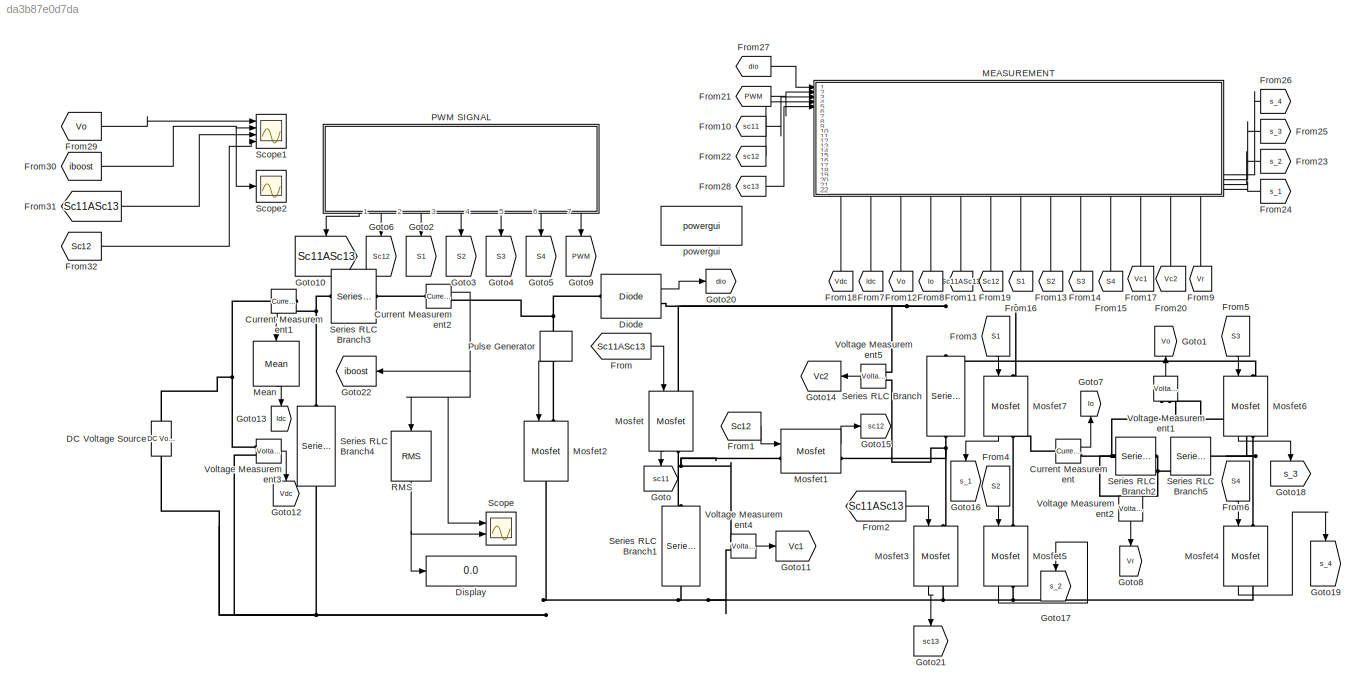
MODEL slx_da3b87e0d7da
KIND model
CONFIG AbsTol = auto
CONFIG EnableMultiTasking = off
CONFIG FixedStep = auto
CONFIG MaxStep = auto
CONFIG MinStep = auto
CONFIG RelTol = 1e-3
CONFIG SampleTimeConstraint = Unconstrained
CONFIG SolverName = VariableStepAuto
CONFIG StartTime = 0.0
CONFIG StopTime = 1.8
BLOCK [Reference] Current Measurement  REF=spsCurrentMeasurementLib/Current Measurement
  Ports = [0, 1, 0, 0, 0, 1, 1]
  SourceBlock = spsCurrentMeasurementLib/Current Measurement
  SourceType = Current Measurement
  UserDataPersistent = on
BLOCK [Reference] Current Measurement1  REF=spsCurrentMeasurementLib/Current Measurement
  Ports = [0, 1, 0, 0, 0, 1, 1]
  SourceBlock = spsCurrentMeasurementLib/Current Measurement
  SourceType = Current Measurement
  UserDataPersistent = on
BLOCK [Reference] Current Measurement2  REF=spsCurrentMeasurementLib/Current Measurement
  Ports = [0, 1, 0, 0, 0, 1, 1]
  SourceBlock = spsCurrentMeasurementLib/Current Measurement
  SourceType = Current Measurement
  UserDataPersistent = on
BLOCK [Reference] DC Voltage Source  REF=spsDCVoltageSourceLib/DC Voltage Source
  Ports = [0, 0, 0, 0, 0, 1, 1]
  SourceBlock = spsDCVoltageSourceLib/DC Voltage Source
  SourceType = DC Voltage Source
BLOCK [Reference] Diode  REF=spsDiodeLib/Diode
  Ports = [0, 1, 0, 0, 0, 1, 1]
  SourceBlock = spsDiodeLib/Diode
  SourceType = Diode
BLOCK [Display] Display
  Decimation = 1
  Ports = [1]
BLOCK [From] From
  GotoTag = Sc11ASc13
BLOCK [From] From1
  GotoTag = Sc12
BLOCK [From] From10
  GotoTag = sc11
BLOCK [From] From11
  GotoTag = Sc11ASc13
  NameLocation = right
BLOCK [From] From12
  GotoTag = Vo
  NameLocation = right
BLOCK [From] From13
  GotoTag = S2
  NameLocation = right
BLOCK [From] From14
  GotoTag = S3
  NameLocation = right
BLOCK [From] From15
  GotoTag = S4
  NameLocation = right
BLOCK [From] From16
  GotoTag = S1
  NameLocation = right
BLOCK [From] From17
  GotoTag = Vc1
  NameLocation = right
BLOCK [From] From18
  GotoTag = Vdc
  NameLocation = right
BLOCK [From] From19
  GotoTag = Sc12
  NameLocation = right
BLOCK [From] From2
  GotoTag = Sc11ASc13
BLOCK [From] From20
  GotoTag = Vc2
  NameLocation = left
BLOCK [From] From21
  GotoTag = PWM
BLOCK [From] From22
  GotoTag = sc12
BLOCK [From] From23
  GotoTag = s_2
  NameLocation = top
BLOCK [From] From24
  GotoTag = s_1
  NameLocation = top
BLOCK [From] From25
  GotoTag = s_3
  NameLocation = top
BLOCK [From] From26
  GotoTag = s_4
  NameLocation = top
BLOCK [From] From27
  GotoTag = dio
BLOCK [From] From28
  GotoTag = sc13
BLOCK [From] From29
  GotoTag = Vo
BLOCK [From] From3
  GotoTag = S1
  NameLocation = left
BLOCK [From] From30
  GotoTag = iboost
BLOCK [From] From31
  GotoTag = Sc11ASc13
BLOCK [From] From32
  GotoTag = Sc12
BLOCK [From] From4
  GotoTag = S2
  NameLocation = left
BLOCK [From] From5
  GotoTag = S3
  NameLocation = left
BLOCK [From] From6
  GotoTag = S4
  NameLocation = left
BLOCK [From] From7
  GotoTag = Idc
  NameLocation = right
BLOCK [From] From8
  GotoTag = Io
  NameLocation = right
BLOCK [From] From9
  GotoTag = Vr
  NameLocation = right
BLOCK [Goto] Goto
  GotoTag = sc11
  NameLocation = left
BLOCK [Goto] Goto1
  GotoTag = Vo
  NameLocation = right
BLOCK [Goto] Goto10
  GotoTag = Sc11ASc13
  NameLocation = left
BLOCK [Goto] Goto11
  GotoTag = Vc1
BLOCK [Goto] Goto12
  GotoTag = Vdc
  NameLocation = left
BLOCK [Goto] Goto13
  GotoTag = Idc
  NameLocation = left
BLOCK [Goto] Goto14
  GotoTag = Vc2
  NameLocation = top
BLOCK [Goto] Goto15
  GotoTag = sc12
BLOCK [Goto] Goto16
  GotoTag = s_1
  NameLocation = left
BLOCK [Goto] Goto17
  GotoTag = s_2
  NameLocation = left
BLOCK [Goto] Goto18
  GotoTag = s_3
  NameLocation = left
BLOCK [Goto] Goto19
  GotoTag = s_4
  NameLocation = left
BLOCK [Goto] Goto2
  GotoTag = S1
  NameLocation = left
BLOCK [Goto] Goto20
  GotoTag = dio
BLOCK [Goto] Goto21
  GotoTag = sc13
  NameLocation = left
BLOCK [Goto] Goto22
  GotoTag = iboost
  NameLocation = top
BLOCK [Goto] Goto3
  GotoTag = S2
  NameLocation = left
BLOCK [Goto] Goto4
  GotoTag = S3
  NameLocation = left
BLOCK [Goto] Goto5
  GotoTag = S4
  NameLocation = left
BLOCK [Goto] Goto6
  GotoTag = Sc12
  NameLocation = left
BLOCK [Goto] Goto7
  GotoTag = Io
  NameLocation = right
BLOCK [Goto] Goto8
  GotoTag = Vr
  NameLocation = left
BLOCK [Goto] Goto9
  GotoTag = PWM
  NameLocation = left
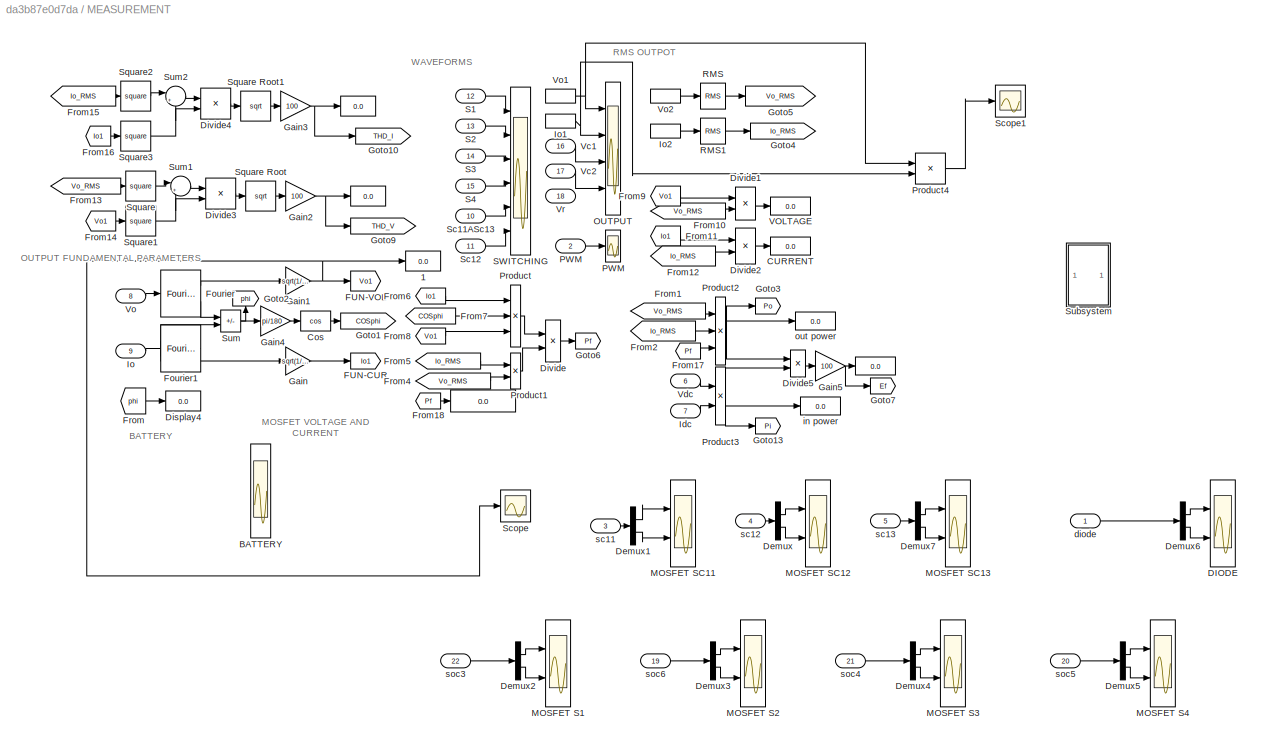
BLOCK [SubSystem] MEASUREMENT
  NameLocation = top
  PortSchema = {"entries":[{"content":{"sides":[{"content":{"connectorIds":["In1","In2","In3","In4","In5"]},"type":"ConnectorPlacement.EquallySpacedRectSide","uuid":"d6dfc44f-8fba-4c4a-86af-0984d0d1ef13"},{"content":{"connectorIds":["In19","In20","In21","In22"],"side":"RIGHT"},"type":"ConnectorPlacement.EquallySpacedRectSide","uuid":"d6149925-38bb-4c16-a1b8-fa53fbdb5b8e"},{"content":{"connectorIds":[],"side":"TO...<+515ch>
  Ports = [22]
BLOCK [Display] MEASUREMENT/ 
  Decimation = 1
  Ports = [1]
BLOCK [Display] MEASUREMENT/  
  Decimation = 1
  Ports = [1]
BLOCK [Display] MEASUREMENT/   
  Decimation = 1
  Ports = [1]
BLOCK [Display] MEASUREMENT/        
  Decimation = 1
  Ports = [1]
BLOCK [Display] MEASUREMENT/   1
  Decimation = 1
  Ports = [1]
BLOCK [Display] MEASUREMENT/  VOLTAGE  
  Decimation = 1
  Ports = [1]
BLOCK [Display] MEASUREMENT/ out power
  Decimation = 1
  Ports = [1]
BLOCK [Scope] MEASUREMENT/BATTERY
  Floating = off
  NumInputPorts = 3
  Ports = [3]
  ScopeSpecificationString = Simulink.scopes.TimeScopeBlockCfg('CurrentConfiguration', extmgr.ConfigurationSet(extmgr.Configuration('Core','General UI',true,'FigureColor',[1 1 1]),extmgr.Configuration('Core','Source UI',true),extmgr.Configuration('Sources','WiredSimulink',true,'DataLoggingVariableName','ScopeData1'),extmgr.Configuration('Visuals','Time Domain',true,'SerializedDisplays',{struct('MinYLimReal','79.97116','MaxYLi...<+2704ch>
BLOCK [Display] MEASUREMENT/CURRENT
  Decimation = 1
  Ports = [1]
BLOCK [Trigonometry] MEASUREMENT/Cos
  Operator = cos
  Ports = [1, 1]
BLOCK [Scope] MEASUREMENT/DIODE
  Floating = off
  NumInputPorts = 2
  Ports = [2]
  ScopeSpecificationString = Simulink.scopes.TimeScopeBlockCfg('CurrentConfiguration', extmgr.ConfigurationSet(extmgr.Configuration('Core','General UI',true),extmgr.Configuration('Core','Source UI',true),extmgr.Configuration('Sources','WiredSimulink',true,'DataLoggingVariableName','ScopeData1'),extmgr.Configuration('Visuals','Time Domain',true,'SerializedDisplays',{struct('MinYLimReal','-1.30187','MaxYLimReal','11.71679','YLa...<+3032ch>
BLOCK [Demux] MEASUREMENT/Demux
  Outputs = 2
  Ports = [1, 2]
BLOCK [Demux] MEASUREMENT/Demux1
  Outputs = 2
  Ports = [1, 2]
BLOCK [Demux] MEASUREMENT/Demux2
  Outputs = 2
  Ports = [1, 2]
BLOCK [Demux] MEASUREMENT/Demux3
  Outputs = 2
  Ports = [1, 2]
BLOCK [Demux] MEASUREMENT/Demux4
  Outputs = 2
  Ports = [1, 2]
BLOCK [Demux] MEASUREMENT/Demux5
  Outputs = 2
  Ports = [1, 2]
BLOCK [Demux] MEASUREMENT/Demux6
  Outputs = 2
  Ports = [1, 2]
BLOCK [Demux] MEASUREMENT/Demux7
  Outputs = 2
  Ports = [1, 2]
BLOCK [Display] MEASUREMENT/Display4
  Decimation = 1
  Ports = [1]
BLOCK [Product] MEASUREMENT/Divide
  Inputs = */
  Ports = [2, 1]
BLOCK [Product] MEASUREMENT/Divide1
  Inputs = */
  Ports = [2, 1]
BLOCK [Product] MEASUREMENT/Divide2
  Inputs = */
  Ports = [2, 1]
BLOCK [Product] MEASUREMENT/Divide3
  Inputs = */
  Ports = [2, 1]
BLOCK [Product] MEASUREMENT/Divide4
  Inputs = */
  Ports = [2, 1]
BLOCK [Product] MEASUREMENT/Divide5
  Inputs = */
  Ports = [2, 1]
BLOCK [Goto] MEASUREMENT/FUN-CUR
  GotoTag = Io1
BLOCK [Goto] MEASUREMENT/FUN-VOL
  GotoTag = Vo1
BLOCK [Reference] MEASUREMENT/Fourier  REF=spsFourierLib/Fourier
  Ports = [1, 2]
  SourceBlock = spsFourierLib/Fourier
  SourceType = Fourier
BLOCK [Reference] MEASUREMENT/Fourier1  REF=spsFourierLib/Fourier
  Ports = [1, 2]
  SourceBlock = spsFourierLib/Fourier
  SourceType = Fourier
BLOCK [From] MEASUREMENT/From
  GotoTag = phi
BLOCK [From] MEASUREMENT/From1
  GotoTag = Vo_RMS
BLOCK [From] MEASUREMENT/From10
  GotoTag = Vo_RMS
BLOCK [From] MEASUREMENT/From11
  GotoTag = Io1
BLOCK [From] MEASUREMENT/From12
  GotoTag = Io_RMS
BLOCK [From] MEASUREMENT/From13
  GotoTag = Vo_RMS
BLOCK [From] MEASUREMENT/From14
  GotoTag = Vo1
BLOCK [From] MEASUREMENT/From15
  GotoTag = Io_RMS
BLOCK [From] MEASUREMENT/From16
  GotoTag = Io1
BLOCK [From] MEASUREMENT/From17
  GotoTag = Pf
BLOCK [From] MEASUREMENT/From18
  GotoTag = Pf
BLOCK [From] MEASUREMENT/From2
  GotoTag = Io_RMS
BLOCK [From] MEASUREMENT/From4
  GotoTag = Vo_RMS
BLOCK [From] MEASUREMENT/From5
  GotoTag = Io_RMS
BLOCK [From] MEASUREMENT/From6
  GotoTag = Io1
BLOCK [From] MEASUREMENT/From7
  GotoTag = COSphi
BLOCK [From] MEASUREMENT/From8
  GotoTag = Vo1
BLOCK [From] MEASUREMENT/From9
  GotoTag = Vo1
BLOCK [Gain] MEASUREMENT/Gain
  Gain = sqrt(1/2)
BLOCK [Gain] MEASUREMENT/Gain1
  Gain = sqrt(1/2)
BLOCK [Gain] MEASUREMENT/Gain2
  Gain = 100
BLOCK [Gain] MEASUREMENT/Gain3
  Gain = 100
BLOCK [Gain] MEASUREMENT/Gain4
  Gain = pi/180
BLOCK [Gain] MEASUREMENT/Gain5
  Gain = 100
BLOCK [Goto] MEASUREMENT/Goto1
  GotoTag = COSphi
BLOCK [Goto] MEASUREMENT/Goto10
  GotoTag = THD_I
BLOCK [Goto] MEASUREMENT/Goto13
  GotoTag = Pi
BLOCK [Goto] MEASUREMENT/Goto2
  GotoTag = phi
  NameLocation = right
BLOCK [Goto] MEASUREMENT/Goto3
  GotoTag = Po
BLOCK [Goto] MEASUREMENT/Goto4
  GotoTag = Io_RMS
BLOCK [Goto] MEASUREMENT/Goto5
  GotoTag = Vo_RMS
BLOCK [Goto] MEASUREMENT/Goto6
  GotoTag = Pf
BLOCK [Goto] MEASUREMENT/Goto7
  GotoTag = Ef
BLOCK [Goto] MEASUREMENT/Goto9
  GotoTag = THD_V
BLOCK [Inport] MEASUREMENT/Idc
  Port = 7
BLOCK [Inport] MEASUREMENT/Io
  Port = 9
BLOCK [InportShadow] MEASUREMENT/Io1
  Port = 9
BLOCK [InportShadow] MEASUREMENT/Io2
  Port = 9
BLOCK [Scope] MEASUREMENT/MOSFET S1
  Floating = off
  NumInputPorts = 2
  Ports = [2]
  ScopeSpecificationString = Simulink.scopes.TimeScopeBlockCfg('CurrentConfiguration', extmgr.ConfigurationSet(extmgr.Configuration('Core','General UI',true),extmgr.Configuration('Core','Source UI',true),extmgr.Configuration('Sources','WiredSimulink',true,'DataLoggingVariableName','ScopeData1'),extmgr.Configuration('Visuals','Time Domain',true,'SerializedDisplays',{struct('MinYLimReal','-1.23675','MaxYLimReal','1.49538','YLab...<+3003ch>
BLOCK [Scope] MEASUREMENT/MOSFET S2
  Floating = off
  NumInputPorts = 2
  Ports = [2]
  ScopeSpecificationString = Simulink.scopes.TimeScopeBlockCfg('CurrentConfiguration', extmgr.ConfigurationSet(extmgr.Configuration('Core','General UI',true),extmgr.Configuration('Core','Source UI',true),extmgr.Configuration('Sources','WiredSimulink',true,'DataLoggingVariableName','ScopeData3'),extmgr.Configuration('Visuals','Time Domain',true,'SerializedDisplays',{struct('MinYLimReal','-0.73736','MaxYLimReal','1.43989','YLab...<+3031ch>
BLOCK [Scope] MEASUREMENT/MOSFET S3
  Floating = off
  NumInputPorts = 2
  Ports = [2]
  ScopeSpecificationString = Simulink.scopes.TimeScopeBlockCfg('CurrentConfiguration', extmgr.ConfigurationSet(extmgr.Configuration('Core','General UI',true),extmgr.Configuration('Core','Source UI',true),extmgr.Configuration('Sources','WiredSimulink',true,'DataLoggingVariableName','ScopeData4'),extmgr.Configuration('Visuals','Time Domain',true,'SerializedDisplays',{struct('MinYLimReal','-1.35035','MaxYLimReal','1.29737','YLab...<+3004ch>
BLOCK [Scope] MEASUREMENT/MOSFET S4
  Floating = off
  NumInputPorts = 2
  Ports = [2]
  ScopeSpecificationString = Simulink.scopes.TimeScopeBlockCfg('CurrentConfiguration', extmgr.ConfigurationSet(extmgr.Configuration('Core','General UI',true),extmgr.Configuration('Core','Source UI',true),extmgr.Configuration('Sources','WiredSimulink',true,'DataLoggingVariableName','ScopeData5'),extmgr.Configuration('Visuals','Time Domain',true,'SerializedDisplays',{struct('MinYLimReal','-1.00000','MaxYLimReal','1.00000','YLab...<+3027ch>
BLOCK [Scope] MEASUREMENT/MOSFET SC11
  Floating = off
  NumInputPorts = 2
  Ports = [2]
  ScopeSpecificationString = Simulink.scopes.TimeScopeBlockCfg('CurrentConfiguration', extmgr.ConfigurationSet(extmgr.Configuration('Core','General UI',true),extmgr.Configuration('Core','Source UI',true),extmgr.Configuration('Sources','WiredSimulink',true,'DataLoggingVariableName','ScopeData1'),extmgr.Configuration('Visuals','Time Domain',true,'SerializedDisplays',{struct('MinYLimReal','-1.58546','MaxYLimReal','8.29724','YLab...<+3130ch>
BLOCK [Scope] MEASUREMENT/MOSFET SC12
  Floating = off
  NumInputPorts = 2
  Ports = [2]
  ScopeSpecificationString = Simulink.scopes.TimeScopeBlockCfg('CurrentConfiguration', extmgr.ConfigurationSet(extmgr.Configuration('Core','General UI',true),extmgr.Configuration('Core','Source UI',true),extmgr.Configuration('Sources','WiredSimulink',true,'DataLoggingVariableName','ScopeData2'),extmgr.Configuration('Visuals','Time Domain',true,'SerializedDisplays',{struct('MinYLimReal','-16.59971','MaxYLimReal','3.29807','YLa...<+3034ch>
BLOCK [Scope] MEASUREMENT/MOSFET SC13
  Floating = off
  NumInputPorts = 2
  Ports = [2]
  ScopeSpecificationString = Simulink.scopes.TimeScopeBlockCfg('CurrentConfiguration', extmgr.ConfigurationSet(extmgr.Configuration('Core','General UI',true),extmgr.Configuration('Core','Source UI',true),extmgr.Configuration('Sources','WiredSimulink',true,'DataLoggingVariableName','ScopeData2'),extmgr.Configuration('Visuals','Time Domain',true,'SerializedDisplays',{struct('MinYLimReal','-1.58546','MaxYLimReal','8.29724','YLab...<+3032ch>
BLOCK [Scope] MEASUREMENT/OUTPUT
  Floating = off
  NumInputPorts = 4
  Ports = [4]
  ScopeSpecificationString = Simulink.scopes.TimeScopeBlockCfg('CurrentConfiguration', extmgr.ConfigurationSet(extmgr.Configuration('Core','General UI',true,'FigureColor',[1 1 1]),extmgr.Configuration('Core','Source UI',true),extmgr.Configuration('Sources','WiredSimulink',true,'DataLoggingVariableName','ScopeData1'),extmgr.Configuration('Visuals','Time Domain',true,'SerializedDisplays',{struct('MinYLimReal','-127.70457','MaxY...<+4180ch>
BLOCK [Inport] MEASUREMENT/PWM
  Port = 2
BLOCK [Scope] MEASUREMENT/PWM 
  Floating = off
  NumInputPorts = 1
  Ports = [1]
  ScopeSpecificationString = Simulink.scopes.TimeScopeBlockCfg('CurrentConfiguration', extmgr.ConfigurationSet(extmgr.Configuration('Core','General UI',true,'FigureColor',[1 1 1]),extmgr.Configuration('Core','Source UI',true),extmgr.Configuration('Sources','WiredSimulink',true,'DataLoggingVariableName','ScopeData2'),extmgr.Configuration('Visuals','Time Domain',true,'SerializedDisplays',{struct('MinYLimReal','-2.5','MaxYLimRea...<+2043ch>
BLOCK [Product] MEASUREMENT/Product
  Inputs = 3
  Ports = [3, 1]
BLOCK [Product] MEASUREMENT/Product1
  Ports = [2, 1]
BLOCK [Product] MEASUREMENT/Product2
  Inputs = ***
  Ports = [3, 1]
BLOCK [Product] MEASUREMENT/Product3
  Inputs = **
  Ports = [2, 1]
BLOCK [Product] MEASUREMENT/Product4
  Ports = [2, 1]
BLOCK [Reference] MEASUREMENT/RMS  REF=spsRMSLib/RMS
  Ports = [1, 1]
  SourceBlock = spsRMSLib/RMS
  SourceType = RMS
BLOCK [Reference] MEASUREMENT/RMS1  REF=spsRMSLib/RMS
  Ports = [1, 1]
  SourceBlock = spsRMSLib/RMS
  SourceType = RMS
BLOCK [Inport] MEASUREMENT/S1
  Port = 12
BLOCK [Inport] MEASUREMENT/S2
  Port = 13
BLOCK [Inport] MEASUREMENT/S3
  Port = 14
BLOCK [Inport] MEASUREMENT/S4
  Port = 15
BLOCK [Scope] MEASUREMENT/SWITCHING
  Floating = off
  NumInputPorts = 6
  Ports = [6]
  ScopeSpecificationString = Simulink.scopes.TimeScopeBlockCfg('CurrentConfiguration', extmgr.ConfigurationSet(extmgr.Configuration('Core','General UI',true,'FigureColor',[1 1 1]),extmgr.Configuration('Core','Source UI',true),extmgr.Configuration('Sources','WiredSimulink',true),extmgr.Configuration('Visuals','Time Domain',true,'SerializedDisplays',{struct('MinYLimReal','-0.125','MaxYLimReal','1.125','YLabelReal','','MinYLimMa...<+7264ch>
BLOCK [Inport] MEASUREMENT/Sc11ASc13
  Port = 10
BLOCK [Inport] MEASUREMENT/Sc12
  Port = 11
BLOCK [Scope] MEASUREMENT/Scope
  Floating = off
  NumInputPorts = 1
  Ports = [1]
  ScopeSpecificationString = Simulink.scopes.TimeScopeBlockCfg('CurrentConfiguration', extmgr.ConfigurationSet(extmgr.Configuration('Core','General UI',true),extmgr.Configuration('Core','Source UI',true),extmgr.Configuration('Sources','WiredSimulink',true,'DataLoggingVariableName','ScopeData1'),extmgr.Configuration('Visuals','Time Domain',true,'SerializedDisplays',{struct('MinYLimReal','-11.80293','MaxYLimReal','106.22634','Y...<+1399ch>
BLOCK [Scope] MEASUREMENT/Scope1
  Floating = off
  NumInputPorts = 1
  Ports = [1]
  ScopeSpecificationString = Simulink.scopes.TimeScopeBlockCfg('CurrentConfiguration', extmgr.ConfigurationSet(extmgr.Configuration('Core','General UI',true),extmgr.Configuration('Core','Source UI',true),extmgr.Configuration('Sources','WiredSimulink',true,'DataLoggingVariableName','ScopeData1'),extmgr.Configuration('Visuals','Time Domain',true,'SerializedDisplays',{struct('MinYLimReal','89.93457','MaxYLimReal','103.01386','YL...<+1450ch>
BLOCK [Math] MEASUREMENT/Square
  Operator = square
  Ports = [1, 1]
BLOCK [Sqrt] MEASUREMENT/Square Root
BLOCK [Sqrt] MEASUREMENT/Square Root1
BLOCK [Math] MEASUREMENT/Square1
  Operator = square
  Ports = [1, 1]
BLOCK [Math] MEASUREMENT/Square2
  Operator = square
  Ports = [1, 1]
BLOCK [Math] MEASUREMENT/Square3
  Operator = square
  Ports = [1, 1]
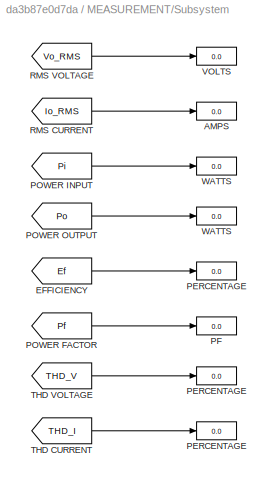
BLOCK [SubSystem] MEASUREMENT/Subsystem
  Ports = []
BLOCK [Display] MEASUREMENT/Subsystem/  PERCENTAGE
  Decimation = 1
  Ports = [1]
BLOCK [Display] MEASUREMENT/Subsystem/ PERCENTAGE
  Decimation = 1
  Ports = [1]
BLOCK [Display] MEASUREMENT/Subsystem/ PERCENTAGE 
  Decimation = 1
  Ports = [1]
BLOCK [Display] MEASUREMENT/Subsystem/ PF
  Decimation = 1
  Ports = [1]
BLOCK [Display] MEASUREMENT/Subsystem/ VOLTS
  Decimation = 1
  Ports = [1]
BLOCK [Display] MEASUREMENT/Subsystem/ WATTS
  Decimation = 1
  Ports = [1]
BLOCK [Display] MEASUREMENT/Subsystem/ WATTS 
  Decimation = 1
  Ports = [1]
BLOCK [Display] MEASUREMENT/Subsystem/AMPS
  Decimation = 1
  Ports = [1]
BLOCK [From] MEASUREMENT/Subsystem/EFFICIENCY
  GotoTag = Ef
BLOCK [From] MEASUREMENT/Subsystem/POWER FACTOR
  GotoTag = Pf
BLOCK [From] MEASUREMENT/Subsystem/POWER INPUT
  GotoTag = Pi
BLOCK [From] MEASUREMENT/Subsystem/POWER OUTPUT
  GotoTag = Po
BLOCK [From] MEASUREMENT/Subsystem/RMS CURRENT
  GotoTag = Io_RMS
BLOCK [From] MEASUREMENT/Subsystem/RMS VOLTAGE
  GotoTag = Vo_RMS
BLOCK [From] MEASUREMENT/Subsystem/THD CURRENT
  GotoTag = THD_I
BLOCK [From] MEASUREMENT/Subsystem/THD VOLTAGE
  GotoTag = THD_V
BLOCK [Sum] MEASUREMENT/Sum
  IconShape = rectangular
  Inputs = +-
  Ports = [2, 1]
BLOCK [Sum] MEASUREMENT/Sum1
  Inputs = |+-
  Ports = [2, 1]
BLOCK [Sum] MEASUREMENT/Sum2
  Inputs = |+-
  Ports = [2, 1]
BLOCK [Inport] MEASUREMENT/Vc1
  Port = 16
BLOCK [Inport] MEASUREMENT/Vc2
  Port = 17
BLOCK [Inport] MEASUREMENT/Vdc
  Port = 6
BLOCK [Inport] MEASUREMENT/Vo
  Port = 8
BLOCK [InportShadow] MEASUREMENT/Vo1
  Port = 8
BLOCK [InportShadow] MEASUREMENT/Vo2
  Port = 8
BLOCK [Inport] MEASUREMENT/Vr
  Port = 18
BLOCK [Inport] MEASUREMENT/diode
BLOCK [Display] MEASUREMENT/in power
  Decimation = 1
  Ports = [1]
BLOCK [Inport] MEASUREMENT/sc11
  Port = 3
BLOCK [Inport] MEASUREMENT/sc12
  Port = 4
BLOCK [Inport] MEASUREMENT/sc13
  Port = 5
BLOCK [Inport] MEASUREMENT/soc3
  Port = 22
BLOCK [Inport] MEASUREMENT/soc4
  Port = 21
BLOCK [Inport] MEASUREMENT/soc5
  Port = 20
BLOCK [Inport] MEASUREMENT/soc6
  Port = 19
BLOCK [Reference] Mean  REF=spsMeanLib/Mean
  NameLocation = right
  Ports = [1, 1]
  SourceBlock = spsMeanLib/Mean
  SourceType = Mean
BLOCK [Reference] Mosfet  REF=spsMosfetLib/Mosfet
  NameLocation = left
  Ports = [1, 1, 0, 0, 0, 1, 1]
  SourceBlock = spsMosfetLib/Mosfet
  SourceType = Mosfet
BLOCK [Reference] Mosfet1  REF=spsMosfetLib/Mosfet
  Ports = [1, 1, 0, 0, 0, 1, 1]
  SourceBlock = spsMosfetLib/Mosfet
  SourceType = Mosfet
BLOCK [Reference] Mosfet2  REF=spsMosfetLib/Mosfet
  NameLocation = left
  Ports = [1, 0, 0, 0, 0, 1, 1]
  SourceBlock = spsMosfetLib/Mosfet
  SourceType = Mosfet
BLOCK [Reference] Mosfet3  REF=spsMosfetLib/Mosfet
  NameLocation = left
  Ports = [1, 1, 0, 0, 0, 1, 1]
  SourceBlock = spsMosfetLib/Mosfet
  SourceType = Mosfet
BLOCK [Reference] Mosfet4  REF=spsMosfetLib/Mosfet
  NameLocation = left
  Ports = [1, 1, 0, 0, 0, 1, 1]
  SourceBlock = spsMosfetLib/Mosfet
  SourceType = Mosfet
BLOCK [Reference] Mosfet5  REF=spsMosfetLib/Mosfet
  NameLocation = left
  Ports = [1, 1, 0, 0, 0, 1, 1]
  SourceBlock = spsMosfetLib/Mosfet
  SourceType = Mosfet
BLOCK [Reference] Mosfet6  REF=spsMosfetLib/Mosfet
  NameLocation = left
  Ports = [1, 1, 0, 0, 0, 1, 1]
  SourceBlock = spsMosfetLib/Mosfet
  SourceType = Mosfet
BLOCK [Reference] Mosfet7  REF=spsMosfetLib/Mosfet
  NameLocation = left
  Ports = [1, 1, 0, 0, 0, 1, 1]
  SourceBlock = spsMosfetLib/Mosfet
  SourceType = Mosfet
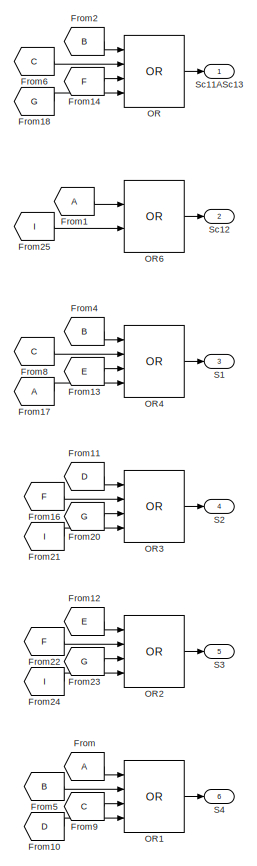
[diagram: PWM SIGNAL - part 1/2, right side, full height]
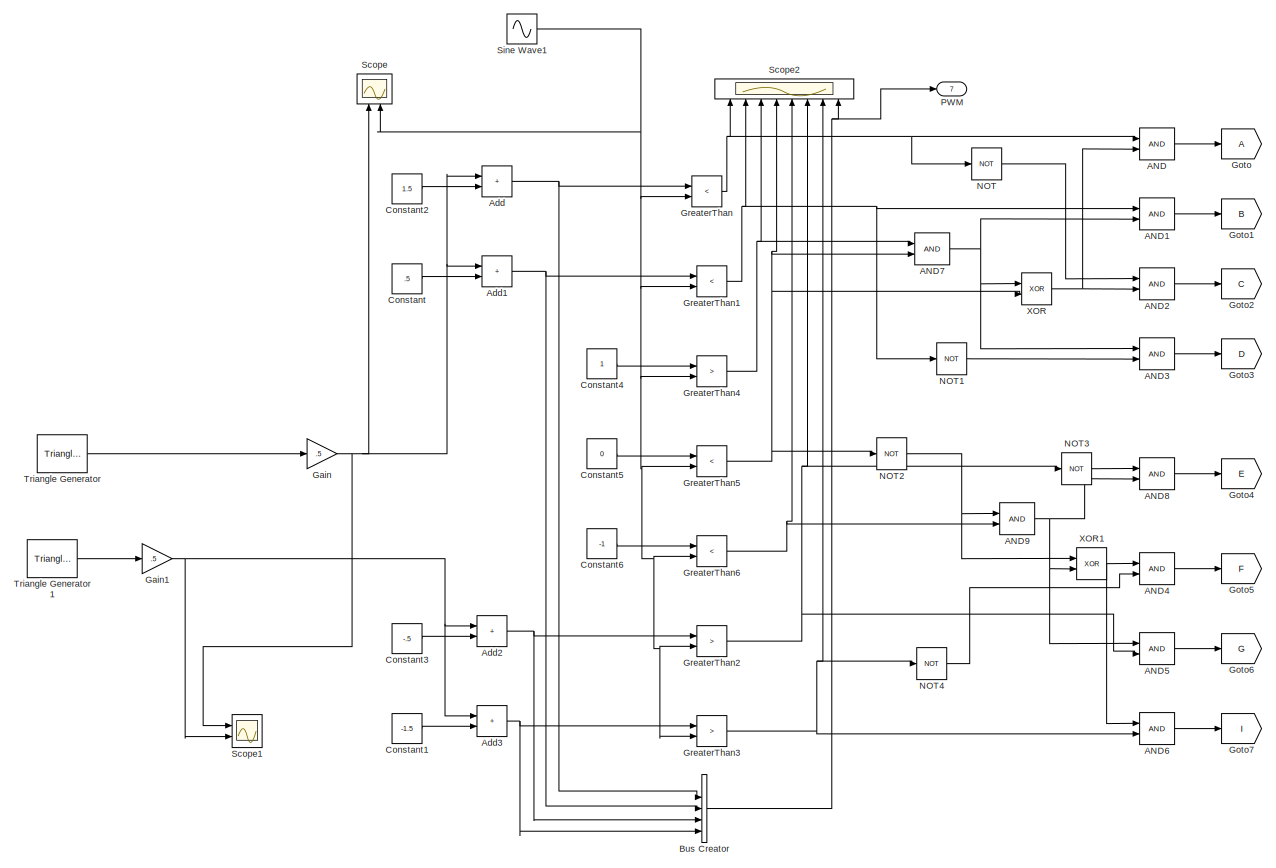
[diagram: PWM SIGNAL - part 2/2, most of the canvas]
BLOCK [SubSystem] PWM SIGNAL
  NameLocation = right
  Ports = [0, 7]
BLOCK [Logic] PWM SIGNAL/AND
  AllPortsSameDT = off
  IconShape = distinctive
  OutDataTypeStr = boolean
  Ports = [2, 1]
BLOCK [Logic] PWM SIGNAL/AND1
  AllPortsSameDT = off
  IconShape = distinctive
  OutDataTypeStr = boolean
  Ports = [2, 1]
BLOCK [Logic] PWM SIGNAL/AND2
  AllPortsSameDT = off
  IconShape = distinctive
  OutDataTypeStr = boolean
  Ports = [2, 1]
BLOCK [Logic] PWM SIGNAL/AND3
  AllPortsSameDT = off
  IconShape = distinctive
  OutDataTypeStr = boolean
  Ports = [2, 1]
BLOCK [Logic] PWM SIGNAL/AND4
  AllPortsSameDT = off
  IconShape = distinctive
  OutDataTypeStr = boolean
  Ports = [2, 1]
BLOCK [Logic] PWM SIGNAL/AND5
  AllPortsSameDT = off
  IconShape = distinctive
  OutDataTypeStr = boolean
  Ports = [2, 1]
BLOCK [Logic] PWM SIGNAL/AND6
  AllPortsSameDT = off
  IconShape = distinctive
  OutDataTypeStr = boolean
  Ports = [2, 1]
BLOCK [Logic] PWM SIGNAL/AND7
  AllPortsSameDT = off
  IconShape = distinctive
  OutDataTypeStr = boolean
  Ports = [2, 1]
BLOCK [Logic] PWM SIGNAL/AND8
  AllPortsSameDT = off
  IconShape = distinctive
  OutDataTypeStr = boolean
  Ports = [2, 1]
BLOCK [Logic] PWM SIGNAL/AND9
  AllPortsSameDT = off
  IconShape = distinctive
  OutDataTypeStr = boolean
  Ports = [2, 1]
BLOCK [Sum] PWM SIGNAL/Add
  IconShape = rectangular
  Ports = [2, 1]
BLOCK [Sum] PWM SIGNAL/Add1
  IconShape = rectangular
  Ports = [2, 1]
BLOCK [Sum] PWM SIGNAL/Add2
  IconShape = rectangular
  Ports = [2, 1]
BLOCK [Sum] PWM SIGNAL/Add3
  IconShape = rectangular
  Ports = [2, 1]
BLOCK [BusCreator] PWM SIGNAL/Bus Creator
  DisplayOption = bar
  InheritFromInputs = on
  Inputs = 5
  Ports = [5, 1]
BLOCK [Constant] PWM SIGNAL/Constant
  Value = .5
BLOCK [Constant] PWM SIGNAL/Constant1
  Value = -1.5
BLOCK [Constant] PWM SIGNAL/Constant2
  Value = 1.5
BLOCK [Constant] PWM SIGNAL/Constant3
  Value = -.5
BLOCK [Constant] PWM SIGNAL/Constant4
BLOCK [Constant] PWM SIGNAL/Constant5
  Value = 0
BLOCK [Constant] PWM SIGNAL/Constant6
  Value = -1
BLOCK [From] PWM SIGNAL/From
BLOCK [From] PWM SIGNAL/From1
BLOCK [From] PWM SIGNAL/From10
  GotoTag = D
BLOCK [From] PWM SIGNAL/From11
  GotoTag = D
BLOCK [From] PWM SIGNAL/From12
  GotoTag = E
BLOCK [From] PWM SIGNAL/From13
  GotoTag = E
BLOCK [From] PWM SIGNAL/From14
  GotoTag = F
BLOCK [From] PWM SIGNAL/From16
  GotoTag = F
BLOCK [From] PWM SIGNAL/From17
BLOCK [From] PWM SIGNAL/From18
  GotoTag = G
BLOCK [From] PWM SIGNAL/From2
  GotoTag = B
BLOCK [From] PWM SIGNAL/From20
  GotoTag = G
BLOCK [From] PWM SIGNAL/From21
  GotoTag = I
BLOCK [From] PWM SIGNAL/From22
  GotoTag = F
BLOCK [From] PWM SIGNAL/From23
  GotoTag = G
BLOCK [From] PWM SIGNAL/From24
  GotoTag = I
BLOCK [From] PWM SIGNAL/From25
  GotoTag = I
BLOCK [From] PWM SIGNAL/From4
  GotoTag = B
BLOCK [From] PWM SIGNAL/From5
  GotoTag = B
BLOCK [From] PWM SIGNAL/From6
  GotoTag = C
BLOCK [From] PWM SIGNAL/From8
  GotoTag = C
BLOCK [From] PWM SIGNAL/From9
  GotoTag = C
BLOCK [Gain] PWM SIGNAL/Gain
  Gain = .5
BLOCK [Gain] PWM SIGNAL/Gain1
  Gain = .5
BLOCK [Goto] PWM SIGNAL/Goto
BLOCK [Goto] PWM SIGNAL/Goto1
  GotoTag = B
BLOCK [Goto] PWM SIGNAL/Goto2
  GotoTag = C
BLOCK [Goto] PWM SIGNAL/Goto3
  GotoTag = D
BLOCK [Goto] PWM SIGNAL/Goto4
  GotoTag = E
BLOCK [Goto] PWM SIGNAL/Goto5
  GotoTag = F
BLOCK [Goto] PWM SIGNAL/Goto6
  GotoTag = G
BLOCK [Goto] PWM SIGNAL/Goto7
  GotoTag = I
BLOCK [RelationalOperator] PWM SIGNAL/GreaterThan
  InputSameDT = off
  Operator = <
  OutDataTypeStr = boolean
  Ports = [2, 1]
  RndMeth = Simplest
BLOCK [RelationalOperator] PWM SIGNAL/GreaterThan1
  InputSameDT = off
  Operator = <
  OutDataTypeStr = boolean
  Ports = [2, 1]
  RndMeth = Simplest
BLOCK [RelationalOperator] PWM SIGNAL/GreaterThan2
  InputSameDT = off
  Operator = >
  OutDataTypeStr = boolean
  Ports = [2, 1]
  RndMeth = Simplest
BLOCK [RelationalOperator] PWM SIGNAL/GreaterThan3
  InputSameDT = off
  Operator = >
  OutDataTypeStr = boolean
  Ports = [2, 1]
  RndMeth = Simplest
BLOCK [RelationalOperator] PWM SIGNAL/GreaterThan4
  InputSameDT = off
  Operator = >
  OutDataTypeStr = boolean
  Ports = [2, 1]
  RndMeth = Simplest
BLOCK [RelationalOperator] PWM SIGNAL/GreaterThan5
  InputSameDT = off
  Operator = <
  OutDataTypeStr = boolean
  Ports = [2, 1]
  RndMeth = Simplest
BLOCK [RelationalOperator] PWM SIGNAL/GreaterThan6
  InputSameDT = off
  Operator = <
  OutDataTypeStr = boolean
  Ports = [2, 1]
  RndMeth = Simplest
BLOCK [Logic] PWM SIGNAL/NOT
  AllPortsSameDT = off
  IconShape = distinctive
  Operator = NOT
  OutDataTypeStr = boolean
  Ports = [1, 1]
BLOCK [Logic] PWM SIGNAL/NOT1
  AllPortsSameDT = off
  IconShape = distinctive
  Operator = NOT
  OutDataTypeStr = boolean
  Ports = [1, 1]
BLOCK [Logic] PWM SIGNAL/NOT2
  AllPortsSameDT = off
  IconShape = distinctive
  Operator = NOT
  OutDataTypeStr = boolean
  Ports = [1, 1]
BLOCK [Logic] PWM SIGNAL/NOT3
  AllPortsSameDT = off
  IconShape = distinctive
  Operator = NOT
  OutDataTypeStr = boolean
  Ports = [1, 1]
BLOCK [Logic] PWM SIGNAL/NOT4
  AllPortsSameDT = off
  IconShape = distinctive
  Operator = NOT
  OutDataTypeStr = boolean
  Ports = [1, 1]
BLOCK [Logic] PWM SIGNAL/OR
  AllPortsSameDT = off
  IconShape = distinctive
  Inputs = 4
  Operator = OR
  OutDataTypeStr = boolean
  Ports = [4, 1]
BLOCK [Logic] PWM SIGNAL/OR1
  AllPortsSameDT = off
  IconShape = distinctive
  Inputs = 4
  Operator = OR
  OutDataTypeStr = boolean
  Ports = [4, 1]
BLOCK [Logic] PWM SIGNAL/OR2
  AllPortsSameDT = off
  IconShape = distinctive
  Inputs = 4
  Operator = OR
  OutDataTypeStr = boolean
  Ports = [4, 1]
BLOCK [Logic] PWM SIGNAL/OR3
  AllPortsSameDT = off
  IconShape = distinctive
  Inputs = 4
  Operator = OR
  OutDataTypeStr = boolean
  Ports = [4, 1]
BLOCK [Logic] PWM SIGNAL/OR4
  AllPortsSameDT = off
  IconShape = distinctive
  Inputs = 4
  Operator = OR
  OutDataTypeStr = boolean
  Ports = [4, 1]
BLOCK [Logic] PWM SIGNAL/OR6
  AllPortsSameDT = off
  IconShape = distinctive
  Operator = OR
  OutDataTypeStr = boolean
  Ports = [2, 1]
BLOCK [Outport] PWM SIGNAL/PWM
  Port = 7
BLOCK [Outport] PWM SIGNAL/S1
  Port = 3
BLOCK [Outport] PWM SIGNAL/S2
  Port = 4
BLOCK [Outport] PWM SIGNAL/S3
  Port = 5
BLOCK [Outport] PWM SIGNAL/S4
  Port = 6
BLOCK [Outport] PWM SIGNAL/Sc11ASc13
BLOCK [Outport] PWM SIGNAL/Sc12
  Port = 2
BLOCK [Scope] PWM SIGNAL/Scope
  Floating = off
  NameLocation = right
  NumInputPorts = 2
  Ports = [2]
  ScopeSpecificationString = Simulink.scopes.TimeScopeBlockCfg('CurrentConfiguration', extmgr.ConfigurationSet(extmgr.Configuration('Core','General UI',true),extmgr.Configuration('Core','Source UI',true),extmgr.Configuration('Sources','WiredSimulink',true),extmgr.Configuration('Visuals','Time Domain',true,'SerializedDisplays',{struct('MinYLimReal','-5.00000','MaxYLimReal','5.00000','YLabelReal','','MinYLimMag','0.00000','MaxY...<+1433ch>
BLOCK [Scope] PWM SIGNAL/Scope1
  Floating = off
  NumInputPorts = 2
  Ports = [2]
  ScopeSpecificationString = Simulink.scopes.TimeScopeBlockCfg('CurrentConfiguration', extmgr.ConfigurationSet(extmgr.Configuration('Core','General UI',true),extmgr.Configuration('Core','Source UI',true),extmgr.Configuration('Sources','WiredSimulink',true,'DataLoggingVariableName','ScopeData3'),extmgr.Configuration('Visuals','Time Domain',true,'SerializedDisplays',{struct('MinYLimReal','-0.625','MaxYLimReal','0.625','YLabelRe...<+1459ch>
BLOCK [Scope] PWM SIGNAL/Scope2
  Floating = off
  NameLocation = right
  NumInputPorts = 8
  Ports = [8]
  ScopeSpecificationString = Simulink.scopes.TimeScopeBlockCfg('CurrentConfiguration', extmgr.ConfigurationSet(extmgr.Configuration('Core','General UI',true),extmgr.Configuration('Core','Source UI',true),extmgr.Configuration('Sources','WiredSimulink',true,'DataLoggingVariableName','ScopeData1'),extmgr.Configuration('Visuals','Time Domain',true,'SerializedDisplays',{struct('MinYLimReal','-0.125','MaxYLimReal','1.125','YLabelRe...<+7244ch>
BLOCK [Sin] PWM SIGNAL/Sine Wave1
  Amplitude = 1.9
  Frequency = 50*2*pi
  Ports = [0, 1]
  SampleTime = 0
BLOCK [Reference] PWM SIGNAL/Triangle Generator  REF=spsTriangleGeneratorLib/Triangle
Generator
  Ports = [0, 1]
  SourceBlock = spsTriangleGeneratorLib/Triangle\nGenerator
  SourceType = Triangle Generator
BLOCK [Reference] PWM SIGNAL/Triangle Generator1  REF=spsTriangleGeneratorLib/Triangle
Generator
  Ports = [0, 1]
  SourceBlock = spsTriangleGeneratorLib/Triangle\nGenerator
  SourceType = Triangle Generator
BLOCK [Logic] PWM SIGNAL/XOR
  AllPortsSameDT = off
  IconShape = distinctive
  Operator = XOR
  OutDataTypeStr = boolean
  Ports = [2, 1]
BLOCK [Logic] PWM SIGNAL/XOR1
  AllPortsSameDT = off
  IconShape = distinctive
  Operator = XOR
  OutDataTypeStr = boolean
  Ports = [2, 1]
BLOCK [DiscretePulseGenerator] Pulse Generator
  NameLocation = left
  Period = 1/20000
  Ports = [0, 1]
  PulseType = Time based
  PulseWidth = 80
BLOCK [Reference] RMS  REF=spsRMSLib/RMS
  NameLocation = left
  Ports = [1, 1]
  SourceBlock = spsRMSLib/RMS
  SourceType = RMS
BLOCK [Scope] Scope
  Floating = off
  NumInputPorts = 2
  Ports = [2]
  ScopeSpecificationString = Simulink.scopes.TimeScopeBlockCfg('CurrentConfiguration', extmgr.ConfigurationSet(extmgr.Configuration('Core','General UI',true),extmgr.Configuration('Core','Source UI',true),extmgr.Configuration('Sources','WiredSimulink',true,'DataLoggingVariableName','ScopeData1'),extmgr.Configuration('Visuals','Time Domain',true,'SerializedDisplays',{struct('MinYLimReal','-11.6943','MaxYLimReal','105.07817','YL...<+2115ch>
BLOCK [Scope] Scope1
  Floating = off
  NumInputPorts = 4
  Ports = [4]
  ScopeSpecificationString = Simulink.scopes.TimeScopeBlockCfg('CurrentConfiguration', extmgr.ConfigurationSet(extmgr.Configuration('Core','General UI',true),extmgr.Configuration('Core','Source UI',true),extmgr.Configuration('Sources','WiredSimulink',true,'DataLoggingVariableName','ScopeData2'),extmgr.Configuration('Visuals','Time Domain',true,'SerializedDisplays',{struct('MinYLimReal','-196.33265','MaxYLimReal','197.81613','...<+3529ch>
BLOCK [Scope] Scope2
  Floating = off
  NumInputPorts = 1
  Ports = [1]
  ScopeSpecificationString = Simulink.scopes.TimeScopeBlockCfg('CurrentConfiguration', extmgr.ConfigurationSet(extmgr.Configuration('Core','General UI',true),extmgr.Configuration('Core','Source UI',true),extmgr.Configuration('Sources','WiredSimulink',true,'DataLoggingVariableName','ScopeData4'),extmgr.Configuration('Visuals','Time Domain',true,'SerializedDisplays',{struct('MinYLimReal','-14.03069','MaxYLimReal','126.27865','Y...<+1795ch>
BLOCK [Reference] Series RLC Branch  REF=spsSeriesRLCBranchLib/Series RLC Branch
  NameLocation = left
  Ports = [0, 0, 0, 0, 0, 1, 1]
  SourceBlock = spsSeriesRLCBranchLib/Series RLC Branch
  SourceType = Series RLC Branch
BLOCK [Reference] Series RLC Branch1  REF=spsSeriesRLCBranchLib/Series RLC Branch
  NameLocation = left
  Ports = [0, 0, 0, 0, 0, 1, 1]
  SourceBlock = spsSeriesRLCBranchLib/Series RLC Branch
  SourceType = Series RLC Branch
BLOCK [Reference] Series RLC Branch2  REF=spsSeriesRLCBranchLib/Series RLC Branch
  Ports = [0, 0, 0, 0, 0, 1, 1]
  SourceBlock = spsSeriesRLCBranchLib/Series RLC Branch
  SourceType = Series RLC Branch
BLOCK [Reference] Series RLC Branch3  REF=spsSeriesRLCBranchLib/Series RLC Branch
  Ports = [0, 0, 0, 0, 0, 1, 1]
  SourceBlock = spsSeriesRLCBranchLib/Series RLC Branch
  SourceType = Series RLC Branch
BLOCK [Reference] Series RLC Branch4  REF=spsSeriesRLCBranchLib/Series RLC Branch
  NameLocation = left
  Ports = [0, 0, 0, 0, 0, 1, 1]
  SourceBlock = spsSeriesRLCBranchLib/Series RLC Branch
  SourceType = Series RLC Branch
BLOCK [Reference] Series RLC Branch5  REF=spsSeriesRLCBranchLib/Series RLC Branch
  Ports = [0, 0, 0, 0, 0, 1, 1]
  SourceBlock = spsSeriesRLCBranchLib/Series RLC Branch
  SourceType = Series RLC Branch
BLOCK [Reference] Voltage Measurement1  REF=spsVoltageMeasurementLib/Voltage Measurement
  NameLocation = right
  Ports = [0, 1, 0, 0, 0, 2]
  SourceBlock = spsVoltageMeasurementLib/Voltage Measurement
  SourceType = Voltage Measurement
  UserDataPersistent = on
BLOCK [Reference] Voltage Measurement2  REF=spsVoltageMeasurementLib/Voltage Measurement
  NameLocation = left
  Ports = [0, 1, 0, 0, 0, 2]
  SourceBlock = spsVoltageMeasurementLib/Voltage Measurement
  SourceType = Voltage Measurement
  UserDataPersistent = on
BLOCK [Reference] Voltage Measurement3  REF=spsVoltageMeasurementLib/Voltage Measurement
  Ports = [0, 1, 0, 0, 0, 2]
  SourceBlock = spsVoltageMeasurementLib/Voltage Measurement
  SourceType = Voltage Measurement
  UserDataPersistent = on
BLOCK [Reference] Voltage Measurement4  REF=spsVoltageMeasurementLib/Voltage Measurement
  Ports = [0, 1, 0, 0, 0, 2]
  SourceBlock = spsVoltageMeasurementLib/Voltage Measurement
  SourceType = Voltage Measurement
  UserDataPersistent = on
BLOCK [Reference] Voltage Measurement5  REF=spsVoltageMeasurementLib/Voltage Measurement
  NameLocation = top
  Ports = [0, 1, 0, 0, 0, 2]
  SourceBlock = spsVoltageMeasurementLib/Voltage Measurement
  SourceType = Voltage Measurement
  UserDataPersistent = on
BLOCK [Reference] powergui  REF=spspowerguiLib/powergui
  Ports = []
  Priority = 1
  SourceBlock = spspowerguiLib/powergui
  SourceType = PSB option menu block
ANNOTATION MEASUREMENT: BATTERY
ANNOTATION MEASUREMENT: MOSFET VOLTAGE AND CURRENT
ANNOTATION MEASUREMENT: OUTPUT FUNDAMENTAL PARAMETERS
ANNOTATION MEASUREMENT: RMS OUTPOT
ANNOTATION MEASUREMENT: WAVEFORMS
LINE Current Measurement1:1 -> Mean:1
NET Current Measurement2:1 -> Goto22:1, RMS:1, Scope:1
LINE Current Measurement:1 -> Goto7:1
LINE Diode:1 -> Goto20:1
LINE From10:1 -> MEASUREMENT:3
LINE From11:1 -> MEASUREMENT:10
LINE From12:1 -> MEASUREMENT:8
LINE From13:1 -> MEASUREMENT:13
LINE From14:1 -> MEASUREMENT:14
LINE From15:1 -> MEASUREMENT:15
LINE From16:1 -> MEASUREMENT:12
LINE From17:1 -> MEASUREMENT:16
LINE From18:1 -> MEASUREMENT:6
LINE From19:1 -> MEASUREMENT:11
LINE From1:1 -> Mosfet1:1
LINE From20:1 -> MEASUREMENT:17
LINE From21:1 -> MEASUREMENT:2
LINE From22:1 -> MEASUREMENT:4
LINE From23:1 -> MEASUREMENT:21
LINE From24:1 -> MEASUREMENT:22
LINE From25:1 -> MEASUREMENT:20
LINE From26:1 -> MEASUREMENT:19
LINE From27:1 -> MEASUREMENT:1
LINE From28:1 -> MEASUREMENT:5
LINE From29:1 -> Scope1:1
LINE From2:1 -> Mosfet3:1
NET From30:1 -> Scope1:2, Scope2:1
LINE From31:1 -> Scope1:3
LINE From32:1 -> Scope1:4
LINE From3:1 -> Mosfet7:1
LINE From4:1 -> Mosfet5:1
LINE From5:1 -> Mosfet6:1
LINE From6:1 -> Mosfet4:1
LINE From7:1 -> MEASUREMENT:7
LINE From8:1 -> MEASUREMENT:9
LINE From9:1 -> MEASUREMENT:18
LINE From:1 -> Mosfet:1
LINE MEASUREMENT/Cos:1 -> MEASUREMENT/Goto1:1
LINE MEASUREMENT/Demux1:1 -> MEASUREMENT/MOSFET SC11:1
LINE MEASUREMENT/Demux1:2 -> MEASUREMENT/MOSFET SC11:2
LINE MEASUREMENT/Demux2:1 -> MEASUREMENT/MOSFET S1:1
LINE MEASUREMENT/Demux2:2 -> MEASUREMENT/MOSFET S1:2
LINE MEASUREMENT/Demux3:1 -> MEASUREMENT/MOSFET S2:1
LINE MEASUREMENT/Demux3:2 -> MEASUREMENT/MOSFET S2:2
LINE MEASUREMENT/Demux4:1 -> MEASUREMENT/MOSFET S3:1
LINE MEASUREMENT/Demux4:2 -> MEASUREMENT/MOSFET S3:2
LINE MEASUREMENT/Demux5:1 -> MEASUREMENT/MOSFET S4:1
LINE MEASUREMENT/Demux5:2 -> MEASUREMENT/MOSFET S4:2
LINE MEASUREMENT/Demux6:1 -> MEASUREMENT/DIODE:1
LINE MEASUREMENT/Demux6:2 -> MEASUREMENT/DIODE:2
LINE MEASUREMENT/Demux7:1 -> MEASUREMENT/MOSFET SC13:1
LINE MEASUREMENT/Demux7:2 -> MEASUREMENT/MOSFET SC13:2
LINE MEASUREMENT/Demux:1 -> MEASUREMENT/MOSFET SC12:1
LINE MEASUREMENT/Demux:2 -> MEASUREMENT/MOSFET SC12:2
LINE MEASUREMENT/Divide1:1 -> MEASUREMENT/  VOLTAGE  :1
LINE MEASUREMENT/Divide2:1 -> MEASUREMENT/CURRENT:1
LINE MEASUREMENT/Divide3:1 -> MEASUREMENT/Square Root:1
LINE MEASUREMENT/Divide4:1 -> MEASUREMENT/Square Root1:1
LINE MEASUREMENT/Divide5:1 -> MEASUREMENT/Gain5:1
LINE MEASUREMENT/Divide:1 -> MEASUREMENT/Goto6:1
LINE MEASUREMENT/Fourier1:1 -> MEASUREMENT/Gain:1
LINE MEASUREMENT/Fourier1:2 -> MEASUREMENT/Sum:2
LINE MEASUREMENT/Fourier:1 -> MEASUREMENT/Gain1:1
LINE MEASUREMENT/Fourier:2 -> MEASUREMENT/Sum:1
LINE MEASUREMENT/From10:1 -> MEASUREMENT/Divide1:2
LINE MEASUREMENT/From11:1 -> MEASUREMENT/Divide2:1
LINE MEASUREMENT/From12:1 -> MEASUREMENT/Divide2:2
LINE MEASUREMENT/From13:1 -> MEASUREMENT/Square:1
LINE MEASUREMENT/From14:1 -> MEASUREMENT/Square1:1
LINE MEASUREMENT/From15:1 -> MEASUREMENT/Square2:1
LINE MEASUREMENT/From16:1 -> MEASUREMENT/Square3:1
LINE MEASUREMENT/From17:1 -> MEASUREMENT/Product2:3
LINE MEASUREMENT/From18:1 -> MEASUREMENT/        :1
LINE MEASUREMENT/From1:1 -> MEASUREMENT/Product2:1
LINE MEASUREMENT/From2:1 -> MEASUREMENT/Product2:2
LINE MEASUREMENT/From4:1 -> MEASUREMENT/Product1:2
LINE MEASUREMENT/From5:1 -> MEASUREMENT/Product1:1
LINE MEASUREMENT/From6:1 -> MEASUREMENT/Product:1
LINE MEASUREMENT/From7:1 -> MEASUREMENT/Product:2
LINE MEASUREMENT/From8:1 -> MEASUREMENT/Product:3
LINE MEASUREMENT/From9:1 -> MEASUREMENT/Divide1:1
LINE MEASUREMENT/From:1 -> MEASUREMENT/Display4:1
NET MEASUREMENT/Gain1:1 -> MEASUREMENT/   1:1, MEASUREMENT/FUN-VOL:1, MEASUREMENT/Scope:1
NET MEASUREMENT/Gain2:1 -> MEASUREMENT/  :1, MEASUREMENT/Goto9:1
NET MEASUREMENT/Gain3:1 -> MEASUREMENT/   :1, MEASUREMENT/Goto10:1
LINE MEASUREMENT/Gain4:1 -> MEASUREMENT/Cos:1
NET MEASUREMENT/Gain5:1 -> MEASUREMENT/ :1, MEASUREMENT/Goto7:1
LINE MEASUREMENT/Gain:1 -> MEASUREMENT/FUN-CUR:1
LINE MEASUREMENT/Idc:1 -> MEASUREMENT/Product3:2
NET MEASUREMENT/Io1:1 -> MEASUREMENT/OUTPUT:2, MEASUREMENT/Product4:2
LINE MEASUREMENT/Io2:1 -> MEASUREMENT/RMS1:1
LINE MEASUREMENT/Io:1 -> MEASUREMENT/Fourier1:1
LINE MEASUREMENT/PWM:1 -> MEASUREMENT/PWM :1
LINE MEASUREMENT/Product1:1 -> MEASUREMENT/Divide:2
NET MEASUREMENT/Product2:1 -> MEASUREMENT/ out power:1, MEASUREMENT/Divide5:1, MEASUREMENT/Goto3:1
NET MEASUREMENT/Product3:1 -> MEASUREMENT/Divide5:2, MEASUREMENT/Goto13:1, MEASUREMENT/in power:1
LINE MEASUREMENT/Product4:1 -> MEASUREMENT/Scope1:1
LINE MEASUREMENT/Product:1 -> MEASUREMENT/Divide:1
LINE MEASUREMENT/RMS1:1 -> MEASUREMENT/Goto4:1
LINE MEASUREMENT/RMS:1 -> MEASUREMENT/Goto5:1
LINE MEASUREMENT/S1:1 -> MEASUREMENT/SWITCHING:1
LINE MEASUREMENT/S2:1 -> MEASUREMENT/SWITCHING:2
LINE MEASUREMENT/S3:1 -> MEASUREMENT/SWITCHING:3
LINE MEASUREMENT/S4:1 -> MEASUREMENT/SWITCHING:4
LINE MEASUREMENT/Sc11ASc13:1 -> MEASUREMENT/SWITCHING:5
LINE MEASUREMENT/Sc12:1 -> MEASUREMENT/SWITCHING:6
LINE MEASUREMENT/Square Root1:1 -> MEASUREMENT/Gain3:1
LINE MEASUREMENT/Square Root:1 -> MEASUREMENT/Gain2:1
NET MEASUREMENT/Square1:1 -> MEASUREMENT/Divide3:2, MEASUREMENT/Sum1:2
LINE MEASUREMENT/Square2:1 -> MEASUREMENT/Sum2:1
NET MEASUREMENT/Square3:1 -> MEASUREMENT/Divide4:2, MEASUREMENT/Sum2:2
LINE MEASUREMENT/Square:1 -> MEASUREMENT/Sum1:1
LINE MEASUREMENT/Subsystem/EFFICIENCY:1 -> MEASUREMENT/Subsystem/ PERCENTAGE:1
LINE MEASUREMENT/Subsystem/POWER FACTOR:1 -> MEASUREMENT/Subsystem/ PF:1
LINE MEASUREMENT/Subsystem/POWER INPUT:1 -> MEASUREMENT/Subsystem/ WATTS:1
LINE MEASUREMENT/Subsystem/POWER OUTPUT:1 -> MEASUREMENT/Subsystem/ WATTS :1
LINE MEASUREMENT/Subsystem/RMS CURRENT:1 -> MEASUREMENT/Subsystem/AMPS:1
LINE MEASUREMENT/Subsystem/RMS VOLTAGE:1 -> MEASUREMENT/Subsystem/ VOLTS:1
LINE MEASUREMENT/Subsystem/THD CURRENT:1 -> MEASUREMENT/Subsystem/  PERCENTAGE:1
LINE MEASUREMENT/Subsystem/THD VOLTAGE:1 -> MEASUREMENT/Subsystem/ PERCENTAGE :1
LINE MEASUREMENT/Sum1:1 -> MEASUREMENT/Divide3:1
LINE MEASUREMENT/Sum2:1 -> MEASUREMENT/Divide4:1
NET MEASUREMENT/Sum:1 -> MEASUREMENT/Gain4:1, MEASUREMENT/Goto2:1
LINE MEASUREMENT/Vc1:1 -> MEASUREMENT/OUTPUT:3
LINE MEASUREMENT/Vc2:1 -> MEASUREMENT/OUTPUT:4
LINE MEASUREMENT/Vdc:1 -> MEASUREMENT/Product3:1
NET MEASUREMENT/Vo1:1 -> MEASUREMENT/OUTPUT:1, MEASUREMENT/Product4:1
LINE MEASUREMENT/Vo2:1 -> MEASUREMENT/RMS:1
LINE MEASUREMENT/Vo:1 -> MEASUREMENT/Fourier:1
LINE MEASUREMENT/diode:1 -> MEASUREMENT/Demux6:1
LINE MEASUREMENT/sc11:1 -> MEASUREMENT/Demux1:1
LINE MEASUREMENT/sc12:1 -> MEASUREMENT/Demux:1
LINE MEASUREMENT/sc13:1 -> MEASUREMENT/Demux7:1
LINE MEASUREMENT/soc3:1 -> MEASUREMENT/Demux2:1
LINE MEASUREMENT/soc4:1 -> MEASUREMENT/Demux4:1
LINE MEASUREMENT/soc5:1 -> MEASUREMENT/Demux5:1
LINE MEASUREMENT/soc6:1 -> MEASUREMENT/Demux3:1
LINE Mean:1 -> Goto13:1
LINE Mosfet1:1 -> Goto15:1
LINE Mosfet3:1 -> Goto21:1
LINE Mosfet4:1 -> Goto19:1
LINE Mosfet5:1 -> Goto17:1
LINE Mosfet6:1 -> Goto18:1
LINE Mosfet7:1 -> Goto16:1
LINE Mosfet:1 -> Goto:1
LINE PWM SIGNAL/AND1:1 -> PWM SIGNAL/Goto1:1
LINE PWM SIGNAL/AND2:1 -> PWM SIGNAL/Goto2:1
LINE PWM SIGNAL/AND3:1 -> PWM SIGNAL/Goto3:1
LINE PWM SIGNAL/AND4:1 -> PWM SIGNAL/Goto5:1
LINE PWM SIGNAL/AND5:1 -> PWM SIGNAL/Goto6:1
LINE PWM SIGNAL/AND6:1 -> PWM SIGNAL/Goto7:1
NET PWM SIGNAL/AND7:1 -> PWM SIGNAL/AND1:2, PWM SIGNAL/AND3:1, PWM SIGNAL/XOR:1
LINE PWM SIGNAL/AND8:1 -> PWM SIGNAL/Goto4:1
NET PWM SIGNAL/AND9:1 -> PWM SIGNAL/AND5:1, PWM SIGNAL/AND8:2, PWM SIGNAL/XOR1:2
LINE PWM SIGNAL/AND:1 -> PWM SIGNAL/Goto:1
NET PWM SIGNAL/Add1:1 -> PWM SIGNAL/Bus Creator:3, PWM SIGNAL/GreaterThan1:1
NET PWM SIGNAL/Add2:1 -> PWM SIGNAL/Bus Creator:4, PWM SIGNAL/GreaterThan2:1
NET PWM SIGNAL/Add3:1 -> PWM SIGNAL/Bus Creator:5, PWM SIGNAL/GreaterThan3:1
NET PWM SIGNAL/Add:1 -> PWM SIGNAL/Bus Creator:2, PWM SIGNAL/GreaterThan:1
NET PWM SIGNAL/Bus Creator:1 -> PWM SIGNAL/PWM:1, PWM SIGNAL/Scope2:8
LINE PWM SIGNAL/Constant1:1 -> PWM SIGNAL/Add3:2
LINE PWM SIGNAL/Constant2:1 -> PWM SIGNAL/Add:2
LINE PWM SIGNAL/Constant3:1 -> PWM SIGNAL/Add2:2
LINE PWM SIGNAL/Constant4:1 -> PWM SIGNAL/GreaterThan4:1
LINE PWM SIGNAL/Constant5:1 -> PWM SIGNAL/GreaterThan5:1
LINE PWM SIGNAL/Constant6:1 -> PWM SIGNAL/GreaterThan6:1
LINE PWM SIGNAL/Constant:1 -> PWM SIGNAL/Add1:2
LINE PWM SIGNAL/From10:1 -> PWM SIGNAL/OR1:4
LINE PWM SIGNAL/From11:1 -> PWM SIGNAL/OR3:1
LINE PWM SIGNAL/From12:1 -> PWM SIGNAL/OR2:1
LINE PWM SIGNAL/From13:1 -> PWM SIGNAL/OR4:3
LINE PWM SIGNAL/From14:1 -> PWM SIGNAL/OR:3
LINE PWM SIGNAL/From16:1 -> PWM SIGNAL/OR3:2
LINE PWM SIGNAL/From17:1 -> PWM SIGNAL/OR4:4
LINE PWM SIGNAL/From18:1 -> PWM SIGNAL/OR:4
LINE PWM SIGNAL/From1:1 -> PWM SIGNAL/OR6:1
LINE PWM SIGNAL/From20:1 -> PWM SIGNAL/OR3:3
LINE PWM SIGNAL/From21:1 -> PWM SIGNAL/OR3:4
LINE PWM SIGNAL/From22:1 -> PWM SIGNAL/OR2:2
LINE PWM SIGNAL/From23:1 -> PWM SIGNAL/OR2:3
LINE PWM SIGNAL/From24:1 -> PWM SIGNAL/OR2:4
LINE PWM SIGNAL/From25:1 -> PWM SIGNAL/OR6:2
LINE PWM SIGNAL/From2:1 -> PWM SIGNAL/OR:1
LINE PWM SIGNAL/From4:1 -> PWM SIGNAL/OR4:1
LINE PWM SIGNAL/From5:1 -> PWM SIGNAL/OR1:2
LINE PWM SIGNAL/From6:1 -> PWM SIGNAL/OR:2
LINE PWM SIGNAL/From8:1 -> PWM SIGNAL/OR4:2
LINE PWM SIGNAL/From9:1 -> PWM SIGNAL/OR1:3
LINE PWM SIGNAL/From:1 -> PWM SIGNAL/OR1:1
NET PWM SIGNAL/Gain1:1 -> PWM SIGNAL/Add2:1, PWM SIGNAL/Add3:1, PWM SIGNAL/Scope1:2
NET PWM SIGNAL/Gain:1 -> PWM SIGNAL/Add1:1, PWM SIGNAL/Add:1, PWM SIGNAL/Scope1:1, PWM SIGNAL/Scope:1
NET PWM SIGNAL/GreaterThan1:1 -> PWM SIGNAL/AND1:1, PWM SIGNAL/NOT1:1, PWM SIGNAL/Scope2:2
NET PWM SIGNAL/GreaterThan2:1 -> PWM SIGNAL/AND5:2, PWM SIGNAL/NOT3:1, PWM SIGNAL/Scope2:6
NET PWM SIGNAL/GreaterThan3:1 -> PWM SIGNAL/AND6:2, PWM SIGNAL/NOT4:1, PWM SIGNAL/Scope2:7
NET PWM SIGNAL/GreaterThan4:1 -> PWM SIGNAL/AND7:1, PWM SIGNAL/Scope2:3
NET PWM SIGNAL/GreaterThan5:1 -> PWM SIGNAL/AND7:2, PWM SIGNAL/NOT2:1, PWM SIGNAL/Scope2:4, PWM SIGNAL/XOR:2
NET PWM SIGNAL/GreaterThan6:1 -> PWM SIGNAL/AND9:2, PWM SIGNAL/Scope2:5
NET PWM SIGNAL/GreaterThan:1 -> PWM SIGNAL/AND:1, PWM SIGNAL/NOT:1, PWM SIGNAL/Scope2:1
LINE PWM SIGNAL/NOT1:1 -> PWM SIGNAL/AND3:2
NET PWM SIGNAL/NOT2:1 -> PWM SIGNAL/AND9:1, PWM SIGNAL/XOR1:1
LINE PWM SIGNAL/NOT3:1 -> PWM SIGNAL/AND8:1
LINE PWM SIGNAL/NOT4:1 -> PWM SIGNAL/AND4:2
LINE PWM SIGNAL/NOT:1 -> PWM SIGNAL/AND2:1
LINE PWM SIGNAL/OR1:1 -> PWM SIGNAL/S4:1
LINE PWM SIGNAL/OR2:1 -> PWM SIGNAL/S3:1
LINE PWM SIGNAL/OR3:1 -> PWM SIGNAL/S2:1
LINE PWM SIGNAL/OR4:1 -> PWM SIGNAL/S1:1
LINE PWM SIGNAL/OR6:1 -> PWM SIGNAL/Sc12:1
LINE PWM SIGNAL/OR:1 -> PWM SIGNAL/Sc11ASc13:1
NET PWM SIGNAL/Sine Wave1:1 -> PWM SIGNAL/GreaterThan1:2, PWM SIGNAL/GreaterThan2:2, PWM SIGNAL/GreaterThan3:2, PWM SIGNAL/GreaterThan4:2, PWM SIGNAL/GreaterThan5:2, PWM SIGNAL/GreaterThan6:2, PWM SIGNAL/GreaterThan:2, PWM SIGNAL/Scope:2
LINE PWM SIGNAL/Triangle Generator1:1 -> PWM SIGNAL/Gain1:1
LINE PWM SIGNAL/Triangle Generator:1 -> PWM SIGNAL/Gain:1
NET PWM SIGNAL/XOR1:1 -> PWM SIGNAL/AND4:1, PWM SIGNAL/AND6:1
NET PWM SIGNAL/XOR:1 -> PWM SIGNAL/AND2:2, PWM SIGNAL/AND:2
LINE PWM SIGNAL:1 -> Goto10:1
LINE PWM SIGNAL:2 -> Goto6:1
LINE PWM SIGNAL:3 -> Goto2:1
LINE PWM SIGNAL:4 -> Goto3:1
LINE PWM SIGNAL:5 -> Goto4:1
LINE PWM SIGNAL:6 -> Goto5:1
LINE PWM SIGNAL:7 -> Goto9:1
LINE Pulse Generator:1 -> Mosfet2:1
NET RMS:1 -> Display:1, Scope:2
LINE Voltage Measurement1:1 -> Goto1:1
LINE Voltage Measurement2:1 -> Goto8:1
LINE Voltage Measurement3:1 -> Goto12:1
LINE Voltage Measurement4:1 -> Goto11:1
LINE Voltage Measurement5:1 -> Goto14:1
PNET net1: Current Measurement1:LConn1 -- DC Voltage Source:RConn1 -- Voltage Measurement3:LConn1
PNET net2: Current Measurement1:RConn1 -- Series RLC Branch3:LConn1 -- Series RLC Branch4:LConn1
PLINE Current Measurement2:LConn1 -- Series RLC Branch3:RConn1
PNET net3: Current Measurement2:RConn1 -- Diode:LConn1 -- Mosfet2:LConn1
PNET net4: Current Measurement:LConn1 -- Mosfet5:LConn1 -- Mosfet7:RConn1
PNET net5: Current Measurement:RConn1 -- Series RLC Branch2:LConn1 -- Voltage Measurement1:LConn1 -- Voltage Measurement2:LConn1
PNET net6: DC Voltage Source:LConn1 -- Mosfet2:RConn1 -- Mosfet3:RConn1 -- Mosfet4:RConn1 -- Mosfet5:RConn1 -- Series RLC Branch1:RConn1 -- Series RLC Branch4:RConn1 -- Voltage Measurement3:LConn2 -- Voltage Measurement4:LConn2
PNET net7: Diode:RConn1 -- Mosfet6:LConn1 -- Mosfet7:LConn1 -- Mosfet:LConn1 -- Series RLC Branch:LConn1 -- Voltage Measurement5:LConn1
PNET net8: Mosfet1:LConn1 -- Mosfet:RConn1 -- Series RLC Branch1:LConn1 -- Voltage Measurement4:LConn1
PNET net9: Mosfet1:RConn1 -- Mosfet3:LConn1 -- Series RLC Branch:RConn1 -- Voltage Measurement5:LConn2
PNET net10: Mosfet4:LConn1 -- Mosfet6:RConn1 -- Series RLC Branch5:RConn1 -- Voltage Measurement1:LConn2
PNET net11: Series RLC Branch2:RConn1 -- Series RLC Branch5:LConn1 -- Voltage Measurement2:LConn2
note: NET lines group one-source signal fan-out (src -> all destinations, sorted); 1:1 wires keep LINE; PNET lines group multi-terminal physical nets as a canonical sorted terminal list (undirected conserving connections); 2-terminal nets keep the pairwise PLINE form
